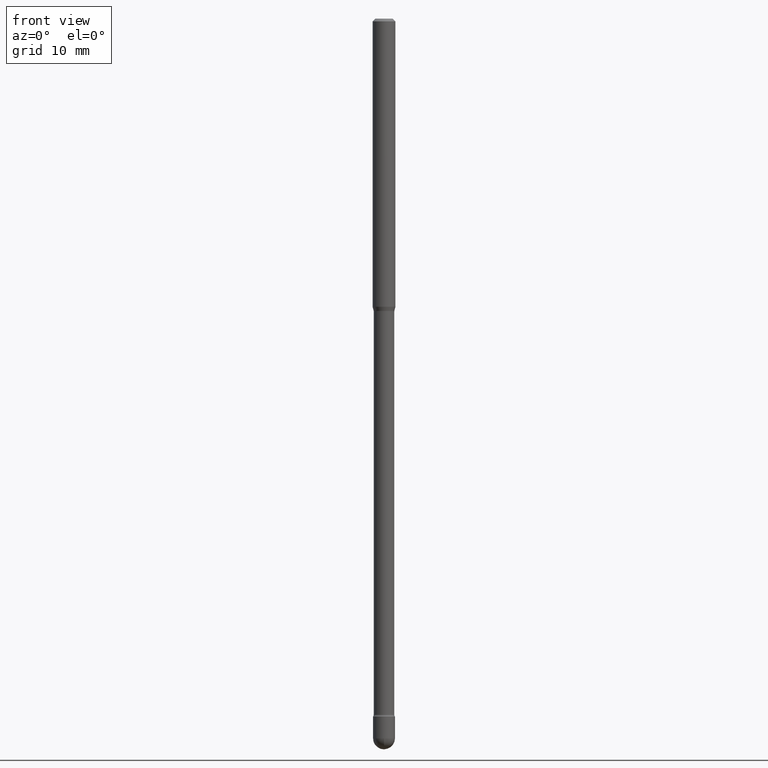
[diagram: clean part render]
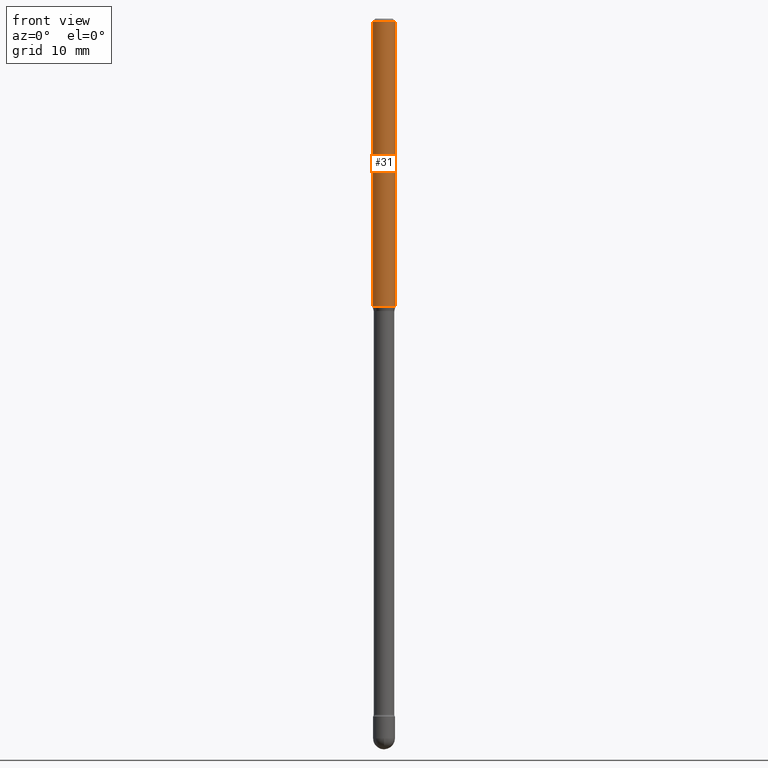
[diagram: same view with one face highlighted and labeled with its STEP entity id]
A machine part, front view. The second image highlights one B-rep face of the part: STEP entity #31.
In plain terms, the highlighted cylindrical surface (edge-blend (fillet) strip) has radius 1.5875 mm, axis along (-0, 0, 1).
Its self-contained STEP definition (entity closure, byte-faithful):
#3 = CARTESIAN_POINT ( 'NONE',  ( 0.06250000000000000000, -4.888073874380391431E-16, -0.01500000000000008271 ) ) ;
#22 = EDGE_CURVE ( 'NONE', #423, #34, #346, .T. ) ;
#31 = ADVANCED_FACE ( 'NONE', ( #435 ), #265, .T. ) ;
#34 = VERTEX_POINT ( 'NONE', #179 ) ;
#48 = EDGE_CURVE ( 'NONE', #527, #401, #186, .T. ) ;
#63 = EDGE_CURVE ( 'NONE', #423, #527, #366, .T. ) ;
#147 = CARTESIAN_POINT ( 'NONE',  ( -0.06250000000000000000, 4.440892098500642925E-16, 4.780733988912429571E-16 ) ) ;
#151 = DIRECTION ( 'NONE',  ( 1.000000000000000000, -6.982962677686266711E-15, 0.000000000000000000 ) ) ;
#152 = DIRECTION ( 'NONE',  ( -2.445468806185136597E-29, 3.491481338843145583E-15, 1.000000000000000000 ) ) ;
#179 = CARTESIAN_POINT ( 'NONE',  ( -0.06250000000000000000, -2.335539294727541852E-15, -0.01500000000000008271 ) ) ;
#186 = LINE ( 'NONE', #304, #317 ) ;
#197 = EDGE_CURVE ( 'NONE', #34, #401, #340, .T. ) ;
#198 = ORIENTED_EDGE ( 'NONE', *, *, #63, .T. ) ;
#224 = ORIENTED_EDGE ( 'NONE', *, *, #22, .F. ) ;
#235 = CARTESIAN_POINT ( 'NONE',  ( -0.06250000000000000000, -5.062795579222499634E-15, -1.577234490073829765 ) ) ;
#240 = CARTESIAN_POINT ( 'NONE',  ( 3.668203209277725232E-31, -5.237222008264747365E-17, -0.01500000000000008271 ) ) ;
#244 = AXIS2_PLACEMENT_3D ( 'NONE', #240, #491, #151 ) ;
#265 = CYLINDRICAL_SURFACE ( 'NONE', #431, 0.06250000000000000000 ) ;
#288 = CARTESIAN_POINT ( 'NONE',  ( 0.06250000000000000000, -5.943319956427953131E-15, -1.577234490073829765 ) ) ;
#304 = CARTESIAN_POINT ( 'NONE',  ( 0.06250000000000000000, -4.364351673553899931E-16, 4.780733988912490708E-16 ) ) ;
#317 = VECTOR ( 'NONE', #472, 39.37007874015748143 ) ;
#340 = CIRCLE ( 'NONE', #244, 0.06250000000000000000 ) ;
#346 = LINE ( 'NONE', #147, #418 ) ;
#355 = ORIENTED_EDGE ( 'NONE', *, *, #197, .F. ) ;
#357 = DIRECTION ( 'NONE',  ( -2.445468806185136877E-29, 3.491481338843145188E-15, 1.000000000000000000 ) ) ;
#361 = EDGE_LOOP ( 'NONE', ( #224, #198, #520, #355 ) ) ;
#366 = CIRCLE ( 'NONE', #450, 0.06250000000000000000 ) ;
#370 = DIRECTION ( 'NONE',  ( 1.000000000000000000, -6.982962677686262766E-15, 0.000000000000000000 ) ) ;
#394 = DIRECTION ( 'NONE',  ( -2.445468806185136597E-29, 3.491481338843145583E-15, 1.000000000000000000 ) ) ;
#401 = VERTEX_POINT ( 'NONE', #3 ) ;
#418 = VECTOR ( 'NONE', #357, 39.37007874015748143 ) ;
#423 = VERTEX_POINT ( 'NONE', #235 ) ;
#430 = CARTESIAN_POINT ( 'NONE',  ( -1.169113584055446105E-44, 1.669184350826100908E-30, 4.780733988912460139E-16 ) ) ;
#431 = AXIS2_PLACEMENT_3D ( 'NONE', #430, #394, #565 ) ;
#435 = FACE_OUTER_BOUND ( 'NONE', #361, .T. ) ;
#450 = AXIS2_PLACEMENT_3D ( 'NONE', #537, #152, #370 ) ;
#472 = DIRECTION ( 'NONE',  ( -2.445468806185136877E-29, 3.491481338843145188E-15, 1.000000000000000000 ) ) ;
#491 = DIRECTION ( 'NONE',  ( -2.445468806185136597E-29, 3.491481338843145583E-15, 1.000000000000000000 ) ) ;
#520 = ORIENTED_EDGE ( 'NONE', *, *, #48, .T. ) ;
#527 = VERTEX_POINT ( 'NONE', #288 ) ;
#537 = CARTESIAN_POINT ( 'NONE',  ( 3.857077745514871327E-29, -5.506884789072561462E-15, -1.577234490073829765 ) ) ;
#565 = DIRECTION ( 'NONE',  ( 1.000000000000000000, -6.982962677686266711E-15, 4.852736867747366207E-29 ) ) ;